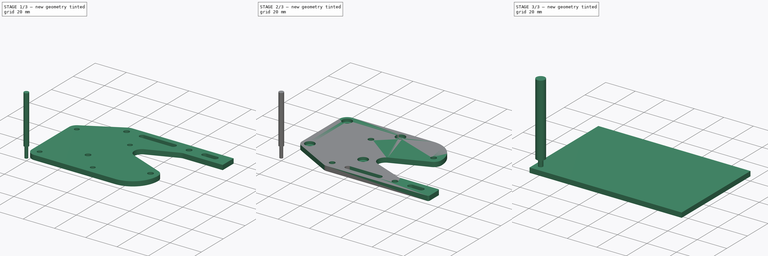
[diagram: build sequence overview — one tinted view per stage of 3, left to right]
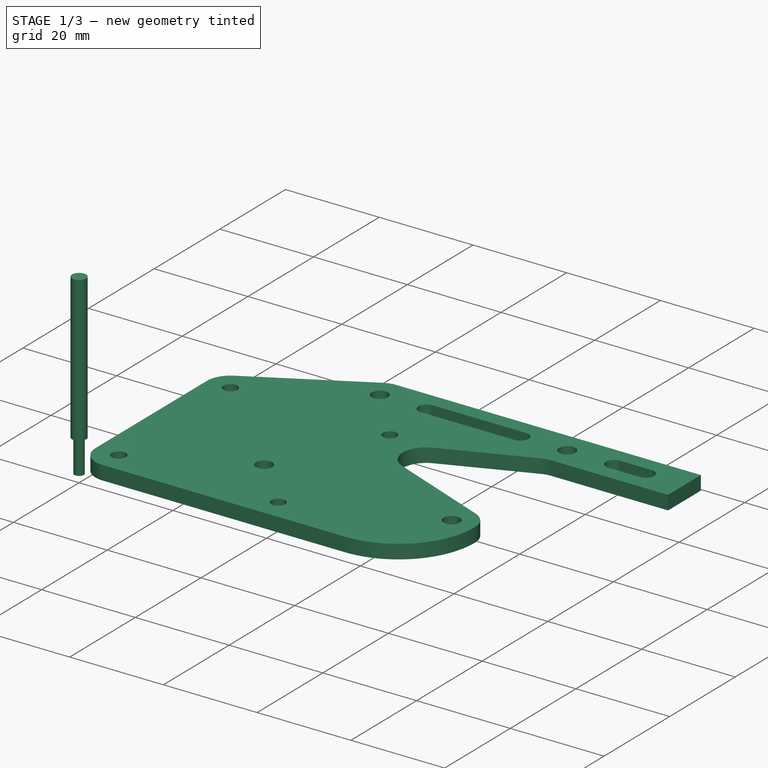
[diagram: stage 1 of 3 — iso view after this stage's code; geometry added in this stage tinted green]
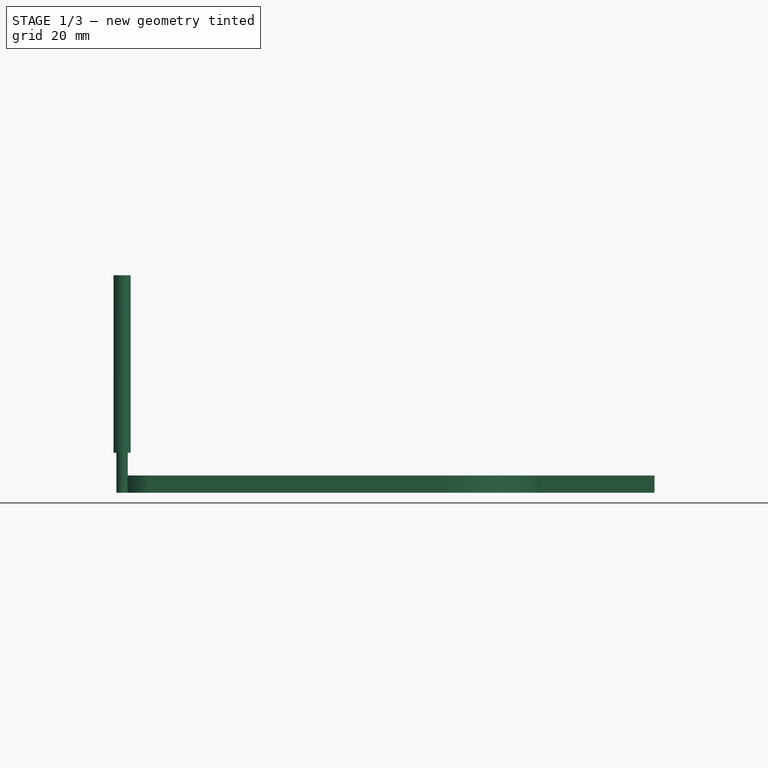
[diagram: stage 1 of 3 — front view after this stage's code; geometry added in this stage tinted green]
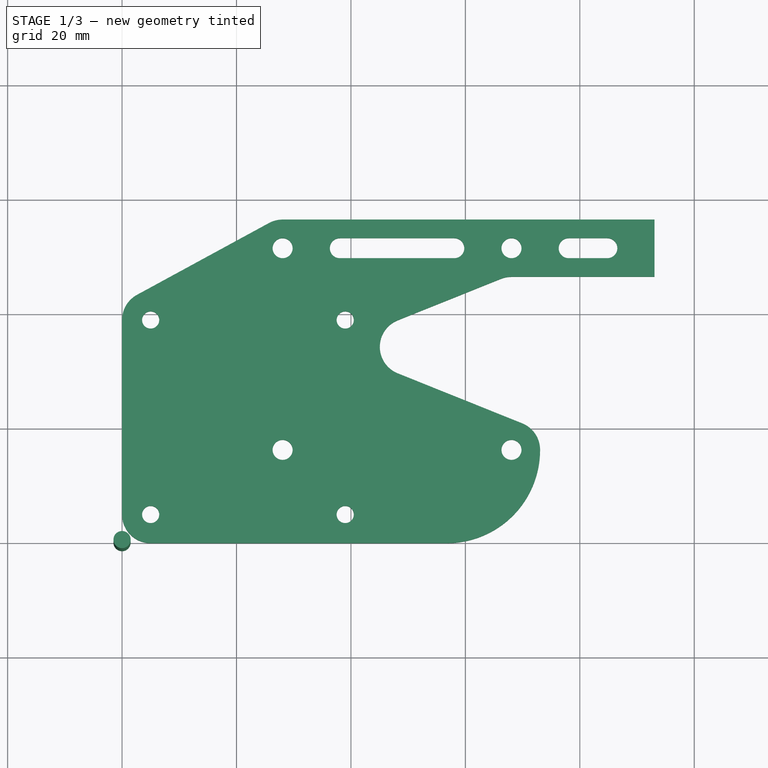
[diagram: stage 1 of 3 — top view after this stage's code; geometry added in this stage tinted green]
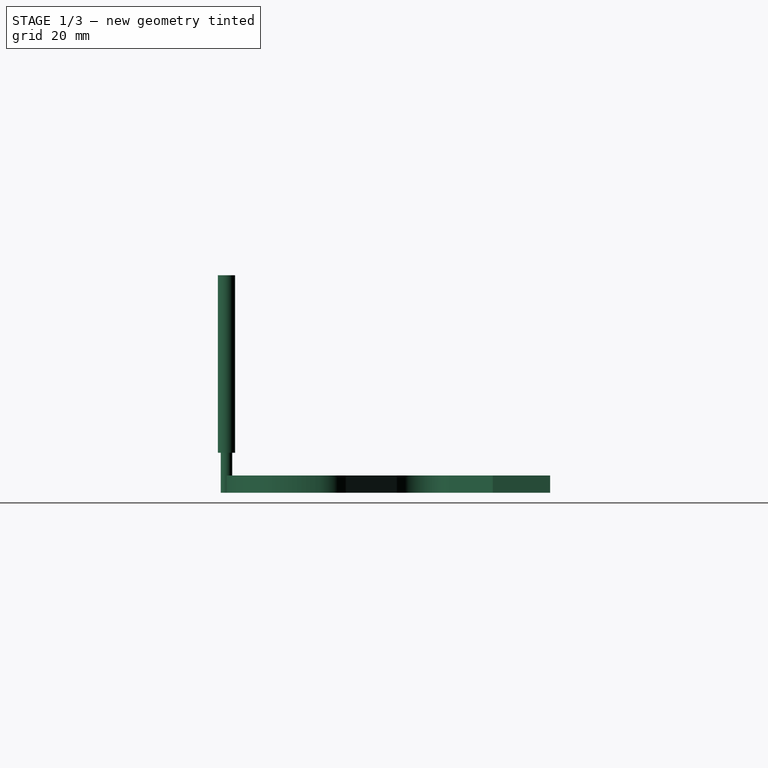
[diagram: stage 1 of 3 — right view after this stage's code; geometry added in this stage tinted green]
FCSTD DOCUMENT  (FreeCAD 0.19R24365 (Git))
Label: E1_Plate_machined
License: All rights reserved
LicenseURL: http://en.wikipedia.org/wiki/All_rights_reserved
objects: Path::FeaturePython×15, Part::FeaturePython×4, Sketcher::SketchObject×2, App::DocumentObjectGroup×2, PartDesign::Pad×1, PartDesign::Fillet×1, PartDesign::Pocket×1, PartDesign::Body×1, App::FeaturePython×1, Path::FeatureCompoundPython×1
note: 19 computed .brp shape members not serialized (recipe doc carries the construction recipe); baked Part::Feature solids carry a one-line shape summary decoded from their .brp

FEATURE [Sketcher::SketchObject] Sketch006
  FullyConstrained = true
  MapMode = 5
  Support = -> [XY_Plane001]
  sketch-geometry (61):
    g0: LineSegment StartX=5 StartY=39 StartZ=0 EndX=39 EndY=39 EndZ=0
    g1: LineSegment StartX=39 StartY=39 StartZ=0 EndX=39 EndY=5 EndZ=0
    g2: LineSegment StartX=39 StartY=5 StartZ=0 EndX=5 EndY=5 EndZ=0
    g3: LineSegment StartX=5 StartY=5 StartZ=0 EndX=5 EndY=39 EndZ=0
    g4: LineSegment StartX=28.06 StartY=51.55 StartZ=0 EndX=68.06 EndY=51.55 EndZ=0
    g5: LineSegment StartX=68.06 StartY=51.55 StartZ=0 EndX=68.06 EndY=16.3 EndZ=0
    g6: LineSegment StartX=68.06 StartY=16.3 StartZ=0 EndX=28.06 EndY=16.3 EndZ=0
    g7: LineSegment StartX=28.06 StartY=16.3 StartZ=0 EndX=28.06 EndY=51.55 EndZ=0
    g8: Circle CenterX=5 CenterY=5 CenterZ=0 NormalX=0 NormalY=0 NormalZ=1 AngleXU=0 Radius=1.5
    g9: Circle CenterX=39 CenterY=5 CenterZ=0 NormalX=0 NormalY=0 NormalZ=1 AngleXU=0 Radius=1.5
    g10: Circle CenterX=39 CenterY=39 CenterZ=0 NormalX=0 NormalY=0 NormalZ=1 AngleXU=0 Radius=1.5
    g11: Circle CenterX=5 CenterY=39 CenterZ=0 NormalX=0 NormalY=0 NormalZ=1 AngleXU=0 Radius=1.5
    g12: Circle CenterX=28.06 CenterY=51.55 CenterZ=0 NormalX=0 NormalY=0 NormalZ=1 AngleXU=0 Radius=1.75
    g13: Circle CenterX=68.06 CenterY=51.55 CenterZ=0 NormalX=0 NormalY=0 NormalZ=1 AngleXU=0 Radius=1.75
    g14: Circle CenterX=68.06 CenterY=16.3 CenterZ=0 NormalX=0 NormalY=0 NormalZ=1 AngleXU=0 Radius=1.75
    g15: Circle CenterX=28.06 CenterY=16.3 CenterZ=0 NormalX=0 NormalY=0 NormalZ=1 AngleXU=0 Radius=1.75
    g16: LineSegment StartX=5 StartY=0 StartZ=0 EndX=56.76 EndY=0 EndZ=0
    g17: LineSegment StartX=48.1831 StartY=38.953 StartZ=0 EndX=66.1961 EndY=46.1896 EndZ=0
    g18: LineSegment StartX=68.06 StartY=46.55 StartZ=0 EndX=93.06 EndY=46.55 EndZ=0
    g19: LineSegment StartX=93.06 StartY=56.55 StartZ=0 EndX=28.06 EndY=56.55 EndZ=0
    g20: LineSegment StartX=0 StartY=39 StartZ=0 EndX=0 EndY=5 EndZ=0
    g21: LineSegment StartX=5 StartY=5 StartZ=0 EndX=5 EndY=0 EndZ=0
    g22: LineSegment StartX=5 StartY=5 StartZ=0 EndX=0 EndY=5 EndZ=0
    g23: ArcOfCircle CenterX=68.06 CenterY=16.3 CenterZ=0 NormalX=0 NormalY=0 NormalZ=1 AngleXU=0 Radius=5 StartAngle=0 EndAngle=1.18879
    g24: LineSegment StartX=68.06 StartY=16.3 StartZ=0 EndX=73.06 EndY=16.3 EndZ=0
    g25: ArcOfCircle CenterX=68.06 CenterY=41.55 CenterZ=0 NormalX=0 NormalY=0 NormalZ=1 AngleXU=0 Radius=5 StartAngle=1.5708 EndAngle=1.9528
    g26: LineSegment StartX=68.06 StartY=51.55 StartZ=0 EndX=68.06 EndY=46.55 EndZ=0
    g27: LineSegment StartX=5 StartY=39 StartZ=0 EndX=0 EndY=39 EndZ=0
    g28: LineSegment StartX=28.06 StartY=51.55 StartZ=0 EndX=28.06 EndY=56.55 EndZ=0
    g29: ArcOfCircle CenterX=28.06 CenterY=51.55 CenterZ=0 NormalX=0 NormalY=0 NormalZ=1 AngleXU=0 Radius=5 StartAngle=1.5708 EndAngle=2.0692
    g30: ArcOfCircle CenterX=5 CenterY=39 CenterZ=0 NormalX=0 NormalY=0 NormalZ=1 AngleXU=0 Radius=5 StartAngle=2.0692 EndAngle=3.14159
    g31: LineSegment StartX=2.60988 StartY=43.3917 StartZ=0 EndX=25.6699 EndY=55.9417 EndZ=0
    g32: LineSegment StartX=93.06 StartY=56.55 StartZ=0 EndX=93.06 EndY=51.55 EndZ=0
    g33: LineSegment StartX=93.06 StartY=51.55 StartZ=0 EndX=93.06 EndY=46.55 EndZ=0
    g34: ArcOfCircle CenterX=56.76 CenterY=16.3 CenterZ=0 NormalX=0 NormalY=0 NormalZ=1 AngleXU=0 Radius=16.3 StartAngle=4.71239 EndAngle=6.28319
    g35: ArcOfCircle CenterX=5 CenterY=5 CenterZ=0 NormalX=0 NormalY=0 NormalZ=1 AngleXU=0 Radius=5 StartAngle=3.14159 EndAngle=4.71239
    g36: ArcOfCircle CenterX=38.06 CenterY=51.55 CenterZ=0 NormalX=0 NormalY=0 NormalZ=1 AngleXU=0 Radius=1.75 StartAngle=1.5708 EndAngle=4.71239
    g37: ArcOfCircle CenterX=58.06 CenterY=51.55 CenterZ=0 NormalX=0 NormalY=0 NormalZ=1 AngleXU=0 Radius=1.75 StartAngle=4.71239 EndAngle=7.85398
    g38: LineSegment StartX=38.06 StartY=49.8 StartZ=0 EndX=58.06 EndY=49.8 EndZ=0
    g39: LineSegment StartX=38.06 StartY=53.3 StartZ=0 EndX=58.06 EndY=53.3 EndZ=0
    g40: LineSegment StartX=48.1831 StartY=29.6738 StartZ=0 EndX=69.9239 EndY=20.9396 EndZ=0
    g41: ArcOfCircle CenterX=50.047 CenterY=34.3134 CenterZ=0 NormalX=0 NormalY=0 NormalZ=1 AngleXU=0 Radius=5 StartAngle=1.9528 EndAngle=4.33038
    g42: LineSegment StartX=50.047 StartY=34.3134 StartZ=0 EndX=45.047 EndY=34.3134 EndZ=0
    g43: LineSegment StartX=48.1831 StartY=38.953 StartZ=0 EndX=48.1831 EndY=34.3134 EndZ=0
    g44: LineSegment StartX=48.1831 StartY=29.6738 StartZ=0 EndX=48.1831 EndY=34.3134 EndZ=0
    g45: ArcOfCircle CenterX=78.06 CenterY=51.55 CenterZ=0 NormalX=0 NormalY=0 NormalZ=1 AngleXU=0 Radius=1.75 StartAngle=1.5708 EndAngle=4.71239
    g46: ArcOfCircle CenterX=84.81 CenterY=51.55 CenterZ=0 NormalX=0 NormalY=0 NormalZ=1 AngleXU=0 Radius=1.75 StartAngle=4.71239 EndAngle=7.85398
    g47: LineSegment StartX=78.06 StartY=49.8 StartZ=0 EndX=84.81 EndY=49.8 EndZ=0
    g48: LineSegment StartX=78.06 StartY=53.3 StartZ=0 EndX=84.81 EndY=53.3 EndZ=0
    g49: LineSegment StartX=78.06 StartY=51.55 StartZ=0 EndX=69.81 EndY=51.55 EndZ=0
    g50: LineSegment StartX=84.81 StartY=51.55 StartZ=0 EndX=93.06 EndY=51.55 EndZ=0
    g51: ArcOfCircle CenterX=15.6807 CenterY=33.5299 CenterZ=0 NormalX=0 NormalY=0 NormalZ=1 AngleXU=0 Radius=5 StartAngle=1.5708 EndAngle=3.14159
    g52: ArcOfCircle CenterX=28.3193 CenterY=33.5299 CenterZ=0 NormalX=0 NormalY=0 NormalZ=1 AngleXU=0 Radius=5 StartAngle=5.49779 EndAngle=7.85398
    g53: ArcOfCircle CenterX=15.6807 CenterY=20.8913 CenterZ=0 NormalX=0 NormalY=0 NormalZ=1 AngleXU=0 Radius=5 StartAngle=3.14159 EndAngle=5.49779
    g54: LineSegment StartX=15.6807 StartY=38.5299 StartZ=0 EndX=28.3193 EndY=38.5299 EndZ=0
    g55: LineSegment StartX=31.8548 StartY=29.9943 StartZ=0 EndX=19.2162 EndY=17.3557 EndZ=0
    g56: LineSegment StartX=10.6807 StartY=20.8913 StartZ=0 EndX=10.6807 EndY=33.5299 EndZ=0
    g57: Circle CenterX=28.06 CenterY=16.3 CenterZ=0 NormalX=0 NormalY=0 NormalZ=1 AngleXU=0 Radius=7
    g58: Circle CenterX=5 CenterY=39 CenterZ=0 NormalX=0 NormalY=0 NormalZ=1 AngleXU=0 Radius=7
    g59: Circle CenterX=5 CenterY=5 CenterZ=0 NormalX=0 NormalY=0 NormalZ=1 AngleXU=0 Radius=7
    g60: Circle CenterX=39 CenterY=39 CenterZ=0 NormalX=0 NormalY=0 NormalZ=1 AngleXU=0 Radius=7
  constraints (159):
    c: Coincident(g0,g1)
    c: Coincident(g1,g2)
    c: Coincident(g2,g3)
    c: Coincident(g3,g0)
    c: Horizontal(g0)
    c: Horizontal(g2)
    c: Vertical(g1)
    c: Vertical(g3)
    c: Coincident(g4,g5)
    c: Coincident(g5,g6)
    c: Coincident(g6,g7)
    c: Coincident(g7,g4)
    c: Horizontal(g4)
    c: Horizontal(g6)
    c: Vertical(g5)
    c: Vertical(g7)
    c: Coincident(g8,g2)
    c: Coincident(g9,g1)
    c: Coincident(g10,g0)
    c: Coincident(g11,g0)
    c: Diameter(g11) = 3
    c: Equal(g11,g9)
    c: Equal(g11,g8)
    c: Coincident(g12,g4)
    c: Coincident(g13,g4)
    c: Coincident(g14,g5)
    c: Coincident(g15,g6)
    c: Diameter(g15) = 3.5
    c: Equal(g15,g14)
    c: Equal(g15,g13)
    c: Equal(g15,g12)
    c: DistanceX(g4,g4) = 40
    c: DistanceY(g5,g5) = 35.25
    c: DistanceX(g0,g0) = 34
    c: DistanceY(g1,g1) = 34
    c: DistanceX(g8,g15) = 23.06
    c: DistanceY(g8,g15) = 11.3
    c: Horizontal(g16)
    c: Horizontal(g18)
    c: Horizontal(g19)
    c: Vertical(g20)
    c: Coincident(g21,g8)
    c: Vertical(g21)
    c: Coincident(g22,g8)
    c: PointOnObject(g22,g20)
    c: Horizontal(g22)
    c: Equal(g21,g22)
    c: DistanceX(g22,g22) = 5
    c: Coincident(g24,g23) = -1.5708
    c: Coincident(g24,g14)
    c: Equal(g24,g21)
    c: Tangent(g18,g25) = 1.5708
    c: Tangent(g17,g25) = 1.5708
    c: Equal(g25,g23)
    c: Coincident(g26,g13)
    c: PointOnObject(g26,g25)
    c: Perpendicular(g25,g26)
    c: Equal(g26,g24)
    c: Horizontal(g20,g11)
    c: Coincident(g27,g11)
    c: Coincident(g27,g20)
    c: Coincident(g28,g12)
    c: Vertical(g28)
    c: Coincident(g19,g28)
    c: Equal(g28,g27)
    c: Coincident(g29,g12)
    c: Coincident(g29,g19)
    c: Coincident(g30,g11)
    c: Coincident(g30,g20)
    c: Tangent(g31,g29) = 1.5708
    c: Tangent(g31,g30) = 1.5708
    c: Coincident(g32,g19)
    c: Coincident(g33,g32)
    c: Coincident(g33,g18)
    c: Vertical(g33)
    c: Vertical(g32)
    c: Equal(g32,g33)
    c: Horizontal(g32,g13)
    c: Coincident(g23,g14)
    c: DistanceX(g18,g18) = 25
    c: Tangent(g16,g34) = -1.5708
    c: Tangent(g23,g34) = -1.5708
    c: Horizontal(g24)
    c: Tangent(g20,g35) = -1.5708
    c: Tangent(g16,g35) = -1.5708
    c: Coincident(g16,g21)
    c: Vertical(g20,g-1)
    c: Horizontal(g16,g-1)
    c: Tangent(g36,g39) = 1.5708
    c: Tangent(g36,g38) = -1.5708
    c: Tangent(g38,g37) = -1.5708
    c: Tangent(g39,g37) = 1.5708
    c: Horizontal(g38)
    c: Equal(g36,g37)
    c: PointOnObject(g36,g4)
    c: Equal(g37,g13)
    c: DistanceX(g12,g36) = 10
    c: DistanceX(g37,g13) = 10
    c: Tangent(g40,g23) = 1.5708
    c: Equal(g41,g23)
    c: Tangent(g41,g40) = -1.5708
    c: Tangent(g41,g17) = 1.5708
    c: Coincident(g42,g41)
    c: PointOnObject(g42,g41)
    c: Horizontal(g42)
    c: Coincident(g43,g17)
    c: PointOnObject(g43,g42)
    c: Vertical(g43)
    c: Coincident(g44,g40)
    c: Coincident(g44,g43)
    c: Vertical(g44)
    c: Tangent(g45,g48) = 1.5708
    c: Tangent(g45,g47) = -1.5708
    c: Tangent(g47,g46) = -1.5708
    c: Tangent(g48,g46) = 1.5708
    c: Horizontal(g47)
    c: Equal(g45,g46)
    c: Equal(g37,g45)
    c: Horizontal(g45,g37)
    c: Coincident(g49,g45)
    c: PointOnObject(g49,g13)
    c: Horizontal(g49)
    c: Coincident(g50,g46)
    c: Coincident(g50,g32)
    c: Equal(g49,g50)
    c: DistanceX(g50,g50) = 8.25
    c: Equal(g51,g53)
    c: Equal(g53,g52)
    c: Equal(g52,g23)
    c: Coincident(g54,g52)
    c: Coincident(g55,g52)
    c: Coincident(g55,g53)
    c: Coincident(g56,g53)
    c: Coincident(g56,g51)
    c: Vertical(g56)
    c: Horizontal(g54)
    c: Coincident(g51,g54)
    c: Tangent(g54,g52)
    c: Tangent(g52,g55)
    c: Tangent(g55,g53)
    c: Tangent(g53,g56)
    c: Tangent(g56,g51)
    c: Tangent(g51,g54)
    c: Coincident(g57,g15)
    c: Tangent(g57,g55)
    c: Coincident(g58,g11)
    c: Tangent(g58,g51)
    c: Coincident(g59,g8)
    c: Equal(g58,g59)
    c: Coincident(g60,g10)
    c: Equal(g60,g57)
    c: Tangent(g52,g60)
    c: Tangent(g60,g41)
    c: Equal(g59,g57)
    c: Radius(g60) = 7
    c: Angle(g55) = -2.35619
    c: Equal(g10,g11)
    c: DistanceX(g37,g13) = 10
    c: DistanceX(g13,g45) = 10
FEATURE [PartDesign::Pad] Pad002
  Direction = (1,1,1)
  Length = 3
  Length2 = 100
  Profile = -> Sketch006
  Refine = true
  Type = 0
FEATURE [Path::FeaturePython] _mm_Endmill  label="3mm_Endmill001"  # Path/CAM operation (typed FeaturePython)
  HorizFeed = 4
  HorizRapid = 50
  SpindleDir = 0
  SpindleSpeed = 14000
  Tool = -> ToolBit001
  ToolNumber = 3
  VertFeed = 0.5
  VertRapid = 10
  expr: VertRapid = SetupSheet.VertRapid
  expr: HorizRapid = SetupSheet.HorizRapid
FEATURE [Path::FeaturePython] Pocket_Shape  # Path/CAM operation (typed FeaturePython)
  Active = true
  AreaParams:
    Tolerance = 1e-07
    FitArcs = True
    Simplify = False
    CleanDistance = 0.0
    Accuracy = 0.01
    Unit = 1.0
    MinArcPoints = 4
    MaxArcPoints = 100
    ClipperScale = 10000000.0
    Fill = 0
    Coplanar = 0
    Reorient = True
    Outline = False
    Explode = False
    OpenMode = 0
    Deflection = 0.01
    SubjectFill = 0
    ClipFill = 0
    Offset = 0.0
    ExtraPass = 0
    Stepover = 0.0
    LastStepover = 0.0
    JoinType = 0
    EndType = 0
    MiterLimit = 2.0
    RoundPrecision = 0.0
    PocketMode = 4
    ToolRadius = 1.5
    PocketExtraOffset = 0.0
    PocketStepover = 1.7999999999999998
    PocketLastStepover = 0.0
    FromCenter = True
    Angle = 45.0
    AngleShift = 0.0
    Shift = 0.0
    Thicken = False
    SectionCount = -1
    Stepdown = 1.0
    SectionOffset = 0.0
    SectionTolerance = 1e-06
    SectionMode = 2
    Project = False
  AttemptInverseAngle = true
  Base = -> [Clone]
  ClearanceHeight = 8.25
  CoolantMode = None
  CutMode = 1
  CycleTime = 00:09:29
  EnableRotation = 0
  ExtensionCorners = true
  ExtensionLengthDefault = 1.5
  ExtraOffset = 0
  FinalDepth = 1.2
  FinishDepth = 0.1
  InverseAngle = false
  KeepToolDown = false
  LimitDepthToFace = true
  MinTravel = false
  OffsetPattern = 3
  OpFinalDepth = 1.2
  OpStartDepth = 3.25
  OpStockZMax = 3.25
  OpStockZMin = -1.2e-14
  OpToolDiameter = 3
  PathParams = {'orientation': 0, 'feedrate': 4.0, 'feedrate_v': 0.5, 'verbose': True, 'resume_height': 6.249999999999988, 'retraction': 8.249999999999988, 'return_end': True, 'preamble': False, 'start': Vector (41.03273532651229, 50.45726454538673, 8.249999999999988)}
  ReverseDirection = false
  SafeHeight = 6.25
  StartAt = 0
  StartDepth = 3.25
  StartPoint = (0,0,0)
  StepDown = 0.2
  StepOver = 60
  ToolController = -> _mm_Endmill
  UseOutline = false
  UseStartPoint = false
  ZigZagAngle = 45
  expr: FinishDepth = 0.1
  expr: ExtensionLengthDefault = OpToolDiameter / 2
  expr: ClearanceHeight = OpStockZMax + SetupSheet.ClearanceHeightOffset
  expr: SafeHeight = OpStockZMax + SetupSheet.SafeHeightOffset
  expr: StepDown = 0.2
  expr: FinalDepth = OpFinalDepth
  expr: StartDepth = OpStartDepth
FEATURE [Path::FeaturePython] RampEntryDressup  label="M3 heads/T3"  # Path/CAM operation (typed FeaturePython)
  Angle = 60
  Base = -> Pocket_Shape
  CustomFeedRate = 0
  DressupStartDepth = 3
  Method = 2
  RampFeedRate = 1
  UseStartDepth = true
FEATURE [Path::FeaturePython] Pocket_Shape001  # Path/CAM operation (typed FeaturePython)
  Active = true
  AreaParams:
    Tolerance = 1e-07
    FitArcs = True
    Simplify = False
    CleanDistance = 0.0
    Accuracy = 0.01
    Unit = 1.0
    MinArcPoints = 4
    MaxArcPoints = 100
    ClipperScale = 10000000.0
    Fill = 0
    Coplanar = 0
    Reorient = True
    Outline = False
    Explode = False
    OpenMode = 0
    Deflection = 0.01
    SubjectFill = 0
    ClipFill = 0
    Offset = 0.0
    ExtraPass = 0
    Stepover = 0.0
    LastStepover = 0.0
    JoinType = 0
    EndType = 0
    MiterLimit = 2.0
    RoundPrecision = 0.0
    PocketMode = 3
    ToolRadius = 1.5
    PocketExtraOffset = 0.0
    PocketStepover = 1.7999999999999998
    PocketLastStepover = 0.0
    FromCenter = True
    Angle = 45.0
    AngleShift = 0.0
    Shift = 0.0
    Thicken = False
    SectionCount = -1
    Stepdown = 1.0
    SectionOffset = 0.0
    SectionTolerance = 1e-06
    SectionMode = 2
    Project = False
  AttemptInverseAngle = true
  Base = -> [Clone]
  ClearanceHeight = 8.25
  CoolantMode = None
  CutMode = 1
  CycleTime = 00:01:17
  EnableRotation = 0
  ExtensionCorners = true
  ExtensionLengthDefault = 1.5
  ExtraOffset = 0
  FinalDepth = -0.4
  FinishDepth = 0
  InverseAngle = false
  KeepToolDown = false
  LimitDepthToFace = true
  MinTravel = false
  OffsetPattern = 2
  OpFinalDepth = -1.2e-14
  OpStartDepth = 3.25
  OpStockZMax = 3.25
  OpStockZMin = -1.2e-14
  OpToolDiameter = 3
  PathParams = {'orientation': 0, 'feedrate': 4.0, 'feedrate_v': 0.5, 'verbose': True, 'resume_height': 6.249999999999988, 'retraction': 8.249999999999988, 'return_end': True, 'preamble': False, 'start': Vector (68.75826673313429, 40.24853906702477, 8.249999999999988)}
  ReverseDirection = false
  SafeHeight = 6.25
  StartAt = 0
  StartDepth = 3.25
  StartPoint = (0,0,0)
  StepDown = 0.2
  StepOver = 60
  ToolController = -> _mm_Endmill
  UseOutline = false
  UseStartPoint = false
  ZigZagAngle = 45
  expr: ExtensionLengthDefault = OpToolDiameter / 2
  expr: ClearanceHeight = OpStockZMax + SetupSheet.ClearanceHeightOffset
  expr: SafeHeight = OpStockZMax + SetupSheet.SafeHeightOffset
  expr: StepDown = 0.2
  expr: FinalDepth = -0.4
  expr: StartDepth = OpStartDepth
FEATURE [Path::FeaturePython] RampEntryDressup001  label="M4 holes/T3"  # Path/CAM operation (typed FeaturePython)
  Angle = 60
  Base = -> Pocket_Shape001
  CustomFeedRate = 0
  DressupStartDepth = 3.25
  Method = 2
  RampFeedRate = 1
  UseStartDepth = true
FEATURE [Path::FeaturePython] Profile  # Path/CAM operation (typed FeaturePython)
  Active = true
  AreaParams:
    Tolerance = 1e-07
    FitArcs = True
    Simplify = False
    CleanDistance = 0.0
    Accuracy = 0.01
    Unit = 1.0
    MinArcPoints = 4
    MaxArcPoints = 100
    ClipperScale = 10000000.0
    Fill = 0
    Coplanar = 0
    Reorient = True
    Outline = False
    Explode = False
    OpenMode = 0
    Deflection = 0.01
    SubjectFill = 0
    ClipFill = 0
    Offset = -1.5
    ExtraPass = 0
    Stepover = 0.0
    LastStepover = 0.0
    JoinType = 0
    EndType = 0
    MiterLimit = 2.0
    RoundPrecision = 0.0
    PocketMode = 0
    ToolRadius = 1.0
    PocketExtraOffset = 0.0
    PocketStepover = 0.0
    PocketLastStepover = 0.0
    FromCenter = False
    Angle = 45.0
    AngleShift = 0.0
    Shift = 0.0
    Thicken = False
    SectionCount = -1
    Stepdown = 1.0
    SectionOffset = 0.0
    SectionTolerance = 1e-06
    SectionMode = 2
    Project = False
  AttemptInverseAngle = true
  Base = -> [Clone]
  ClearanceHeight = 8.25
  CoolantMode = None
  CycleTime = 00:03:29
  Direction = 1
  EnableRotation = 0
  FinalDepth = -0.4
  HandleMultipleFeatures = 0
  InverseAngle = false
  JoinType = 0
  LimitDepthToFace = true
  MiterLimit = 0.1
  OffsetExtra = 0
  OpFinalDepth = 3
  OpStartDepth = 3.25
  OpStockZMax = 3.25
  OpStockZMin = -1.2e-14
  OpToolDiameter = 3
  PathParams = {'orientation': 0, 'feedrate': 4.0, 'feedrate_v': 0.5, 'verbose': True, 'resume_height': 6.249999999999988, 'retraction': 8.249999999999988, 'return_end': True, 'preamble': False}
  ReverseDirection = false
  SafeHeight = 6.25
  Side = 1
  StartDepth = 3.25
  StartPoint = (0,0,0)
  StepDown = 0.2
  ToolController = -> _mm_Endmill
  UseComp = true
  UseStartPoint = false
  processCircles = false
  processHoles = false
  processPerimeter = true
  expr: ClearanceHeight = OpStockZMax + SetupSheet.ClearanceHeightOffset
  expr: SafeHeight = OpStockZMax + SetupSheet.SafeHeightOffset
  expr: StepDown = 0.2
  expr: FinalDepth = -0.4
  expr: StartDepth = OpStartDepth
FEATURE [Path::FeaturePython] Profile001  # Path/CAM operation (typed FeaturePython)
  Active = true
  AreaParams:
    Tolerance = 1e-07
    FitArcs = True
    Simplify = False
    CleanDistance = 0.0
    Accuracy = 0.01
    Unit = 1.0
    MinArcPoints = 4
    MaxArcPoints = 100
    ClipperScale = 10000000.0
    Fill = 0
    Coplanar = 0
    Reorient = True
    Outline = False
    Explode = False
    OpenMode = 0
    Deflection = 0.01
    SubjectFill = 0
    ClipFill = 0
    Offset = -1.5
    ExtraPass = 0
    Stepover = 0.0
    LastStepover = 0.0
    JoinType = 0
    EndType = 0
    MiterLimit = 2.0
    RoundPrecision = 0.0
    PocketMode = 0
    ToolRadius = 1.0
    PocketExtraOffset = 0.0
    PocketStepover = 0.0
    PocketLastStepover = 0.0
    FromCenter = False
    Angle = 45.0
    AngleShift = 0.0
    Shift = 0.0
    Thicken = False
    SectionCount = -1
    Stepdown = 1.0
    SectionOffset = 0.0
    SectionTolerance = 1e-06
    SectionMode = 2
    Project = False
  AttemptInverseAngle = true
  Base = -> [Clone]
  ClearanceHeight = 8.25
  CoolantMode = None
  CycleTime = 00:01:24
  Direction = 1
  EnableRotation = 0
  FinalDepth = -0.4
  HandleMultipleFeatures = 0
  InverseAngle = false
  JoinType = 0
  LimitDepthToFace = true
  MiterLimit = 0.1
  OffsetExtra = 0
  OpFinalDepth = 3
  OpStartDepth = 3.25
  OpStockZMax = 3.25
  OpStockZMin = -1.2e-14
  OpToolDiameter = 3
  PathParams = {'orientation': 0, 'feedrate': 4.0, 'feedrate_v': 0.5, 'verbose': True, 'resume_height': 6.249999999999988, 'retraction': 8.249999999999988, 'return_end': True, 'preamble': False}
  ReverseDirection = false
  SafeHeight = 6.25
  Side = 1
  StartDepth = 3.25
  StartPoint = (0,0,0)
  StepDown = 0.2
  ToolController = -> _mm_Endmill
  UseComp = true
  UseStartPoint = false
  processCircles = false
  processHoles = false
  processPerimeter = true
  expr: ClearanceHeight = OpStockZMax + SetupSheet.ClearanceHeightOffset
  expr: SafeHeight = OpStockZMax + SetupSheet.SafeHeightOffset
  expr: StepDown = 0.2
  expr: FinalDepth = -0.4
  expr: StartDepth = OpStartDepth
FEATURE [Path::FeaturePython] RampEntryDressup002  label="slot 1/T3"  # Path/CAM operation (typed FeaturePython)
  Angle = 60
  Base = -> Profile
  CustomFeedRate = 0
  DressupStartDepth = 3.25
  Method = 2
  RampFeedRate = 1
  UseStartDepth = true
FEATURE [Path::FeaturePython] RampEntryDressup003  label="slot 2/T3"  # Path/CAM operation (typed FeaturePython)
  Angle = 60
  Base = -> Profile001
  CustomFeedRate = 0
  DressupStartDepth = 3.25
  Method = 2
  RampFeedRate = 1
  UseStartDepth = true
FEATURE [Part::FeaturePython] ToolBit  label="2mm_Endmill"  # Path/CAM toolbit (typed FeaturePython)
  BitPropertyNames = Chipload | CuttingEdgeHeight | Diameter | Flutes | Length | Material | ShankDiameter
  BitShape = C:/FreeCAD 0.19 beta/Mod\Path\Tools\Shape\endmill.fcstd
  Chipload = 0
  CuttingEdgeHeight = 7
  Diameter = 2
  File = <path>
  Flutes = 2
  Length = 38
  Material = 1
  ShankDiameter = 3
  ShapeName = endmill
FEATURE [Path::FeaturePython] _mm_Endmill001  label="2mm_Endmill001"  # Path/CAM operation (typed FeaturePython)
  HorizFeed = 4
  HorizRapid = 50
  SpindleDir = 0
  SpindleSpeed = 20000
  Tool = -> ToolBit
  ToolNumber = 2
  VertFeed = 0.5
  VertRapid = 10
  expr: HorizRapid = SetupSheet.HorizRapid
  expr: VertRapid = SetupSheet.VertRapid
FEATURE [App::DocumentObjectGroup] Tools
  Group = -> [_mm_Endmill001,_mm_Endmill]
FEATURE [Path::FeaturePython] Profile002  # Path/CAM operation (typed FeaturePython)
  Active = true
  AreaParams:
    Tolerance = 1e-07
    FitArcs = True
    Simplify = False
    CleanDistance = 0.0
    Accuracy = 0.01
    Unit = 1.0
    MinArcPoints = 4
    MaxArcPoints = 100
    ClipperScale = 10000000.0
    Fill = 0
    Coplanar = 0
    Reorient = True
    Outline = False
    Explode = False
    OpenMode = 0
    Deflection = 0.01
    SubjectFill = 0
    ClipFill = 0
    Offset = 1.0
    ExtraPass = 0
    Stepover = 0.0
    LastStepover = 0.0
    JoinType = 0
    EndType = 0
    MiterLimit = 2.0
    RoundPrecision = 0.0
    PocketMode = 0
    ToolRadius = 1.0
    PocketExtraOffset = 0.0
    PocketStepover = 0.0
    PocketLastStepover = 0.0
    FromCenter = False
    Angle = 45.0
    AngleShift = 0.0
    Shift = 0.0
    Thicken = False
    SectionCount = -1
    Stepdown = 1.0
    SectionOffset = 0.0
    SectionTolerance = 1e-06
    SectionMode = 2
    Project = False
  AttemptInverseAngle = true
  Base = -> [Clone]
  ClearanceHeight = 8.25
  CoolantMode = None
  CycleTime = 00:23:59
  Direction = 1
  EnableRotation = 0
  FinalDepth = -0.4
  HandleMultipleFeatures = 0
  InverseAngle = false
  JoinType = 0
  LimitDepthToFace = true
  MiterLimit = 0.1
  OffsetExtra = 0
  OpFinalDepth = 3
  OpStartDepth = 3.25
  OpStockZMax = 3.25
  OpStockZMin = -1.2e-14
  OpToolDiameter = 2
  PathParams = {'orientation': 0, 'feedrate': 4.0, 'feedrate_v': 0.5, 'verbose': True, 'resume_height': 6.249999999999988, 'retraction': 8.249999999999988, 'return_end': True, 'preamble': False}
  ReverseDirection = false
  SafeHeight = 6.25
  Side = 0
  StartDepth = 3.25
  StartPoint = (0,0,0)
  StepDown = 0.2
  ToolController = -> _mm_Endmill001
  UseComp = true
  UseStartPoint = false
  processCircles = false
  processHoles = false
  processPerimeter = true
  expr: ClearanceHeight = OpStockZMax + SetupSheet.ClearanceHeightOffset
  expr: SafeHeight = OpStockZMax + SetupSheet.SafeHeightOffset
  expr: StepDown = 0.2
  expr: FinalDepth = -0.4
  expr: StartDepth = OpStartDepth
FEATURE [Path::FeaturePython] Pocket_Shape002  label="M3 holes/T2"  # Path/CAM operation (typed FeaturePython)
  Active = true
  AreaParams:
    Tolerance = 1e-07
    FitArcs = True
    Simplify = False
    CleanDistance = 0.0
    Accuracy = 0.01
    Unit = 1.0
    MinArcPoints = 4
    MaxArcPoints = 100
    ClipperScale = 10000000.0
    Fill = 0
    Coplanar = 0
    Reorient = True
    Outline = False
    Explode = False
    OpenMode = 0
    Deflection = 0.01
    SubjectFill = 0
    ClipFill = 0
    Offset = 0.0
    ExtraPass = 0
    Stepover = 0.0
    LastStepover = 0.0
    JoinType = 0
    EndType = 0
    MiterLimit = 2.0
    RoundPrecision = 0.0
    PocketMode = 3
    ToolRadius = 1.0
    PocketExtraOffset = 0.0
    PocketStepover = 2.0
    PocketLastStepover = 0.0
    FromCenter = True
    Angle = 45.0
    AngleShift = 0.0
    Shift = 0.0
    Thicken = False
    SectionCount = -1
    Stepdown = 1.0
    SectionOffset = 0.0
    SectionTolerance = 1e-06
    SectionMode = 2
    Project = False
  AttemptInverseAngle = true
  Base = -> [Clone]
  ClearanceHeight = 8.25
  CoolantMode = None
  CutMode = 0
  CycleTime = 00:01:21
  EnableRotation = 0
  ExtensionCorners = true
  ExtensionLengthDefault = 1
  ExtraOffset = 0
  FinalDepth = -0.4
  FinishDepth = 0
  InverseAngle = false
  KeepToolDown = false
  LimitDepthToFace = true
  MinTravel = false
  OffsetPattern = 2
  OpFinalDepth = -1.2e-14
  OpStartDepth = 3.25
  OpStockZMax = 3.25
  OpStockZMin = -1.2e-14
  OpToolDiameter = 2
  PathParams = {'orientation': 1, 'feedrate': 4.0, 'feedrate_v': 0.5, 'verbose': True, 'resume_height': 6.249999999999988, 'retraction': 8.249999999999988, 'return_end': True, 'preamble': False, 'start': Vector (39.44637960264979, 51.542832792587774, 8.249999999999988)}
  ReverseDirection = false
  SafeHeight = 6.25
  StartAt = 0
  StartDepth = 3.25
  StartPoint = (0,0,0)
  StepDown = 0.2
  StepOver = 100
  ToolController = -> _mm_Endmill001
  UseOutline = false
  UseStartPoint = false
  ZigZagAngle = 45
  expr: ExtensionLengthDefault = OpToolDiameter / 2
  expr: ClearanceHeight = OpStockZMax + SetupSheet.ClearanceHeightOffset
  expr: SafeHeight = OpStockZMax + SetupSheet.SafeHeightOffset
  expr: StepDown = 0.2
  expr: FinalDepth = -0.4
  expr: StartDepth = OpStartDepth
FEATURE [Path::FeaturePython] DressupTag  # Path/CAM operation (typed FeaturePython)
  Angle = 45
  Base = -> Profile002
  Height = 1
  Positions = (5) [(37.36,-1,0),(58.5058,14.9052,0),(31.7898,57.5491,0),(-0.0591129,34.5202,0),(95,4.69,0)]
  Radius = 0
  SegmentationFactor = 50
  Width = 6.41
FEATURE [Path::FeaturePython] RampEntryDressup004  label="outline/T2"  # Path/CAM operation (typed FeaturePython)
  Angle = 60
  Base = -> DressupTag
  CustomFeedRate = 0
  DressupStartDepth = 3.25
  Method = 2
  RampFeedRate = 0
  UseStartDepth = false
FEATURE [Path::FeatureCompoundPython] Operations  # Path/CAM operation (typed FeaturePython)
  Group = -> [RampEntryDressup,RampEntryDressup001,RampEntryDressup002,RampEntryDressup003,Pocket_Shape002,RampEntryDressup004]
  UsePlacements = false
FEATURE [Path::FeaturePython] Job  # Path/CAM operation (typed FeaturePython)
  CycleTime = 00:40:59
  Fixtures = G54
  GeometryTolerance = 0.01
  LastPostProcessDate = 2022-02-09 19:36:13.826191
  LastPostProcessOutput = <path>
  Model = -> Model
  Operations = -> Operations
  OrderOutputBy = 0
  PostProcessor = 1
  SetupSheet = -> SetupSheet
  SplitOutput = false
  Stock = -> Stock
  Tools = -> Tools
note: 3 file-system paths scrubbed to <path> (originals preserved in the JSON sidecar)
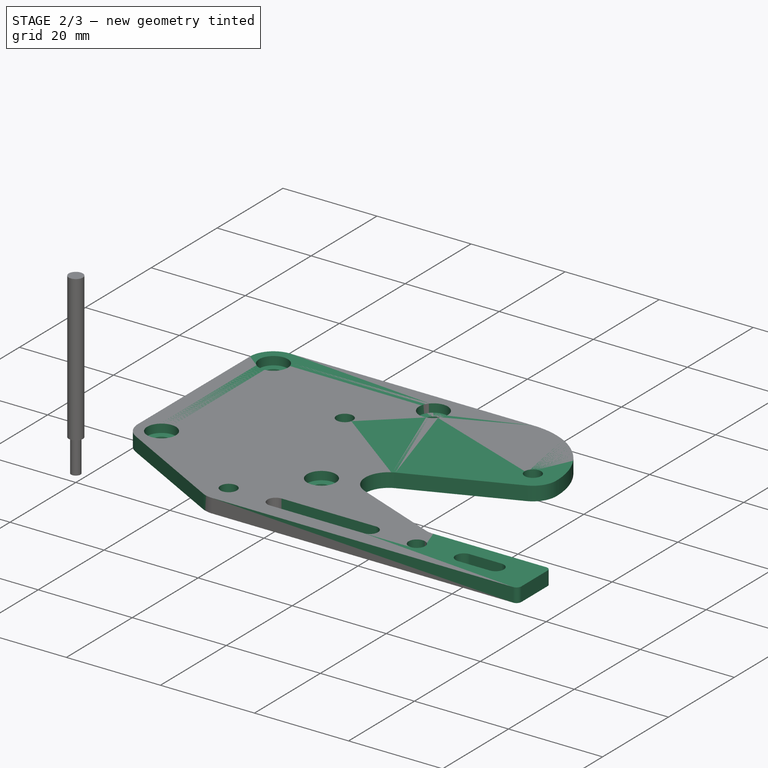
[diagram: stage 2 of 3 — iso view after this stage's code; geometry added in this stage tinted green]
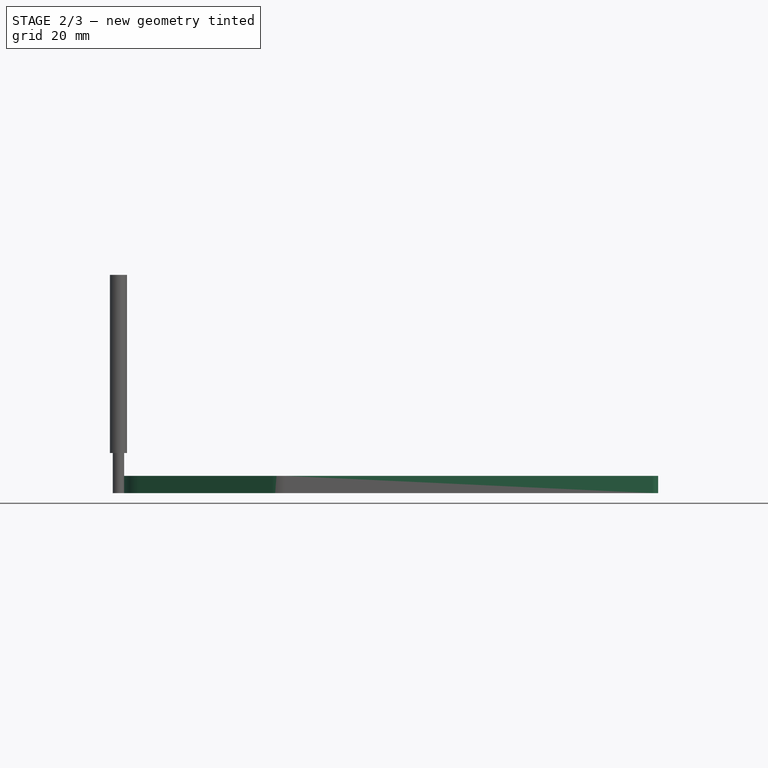
[diagram: stage 2 of 3 — front view after this stage's code; geometry added in this stage tinted green]
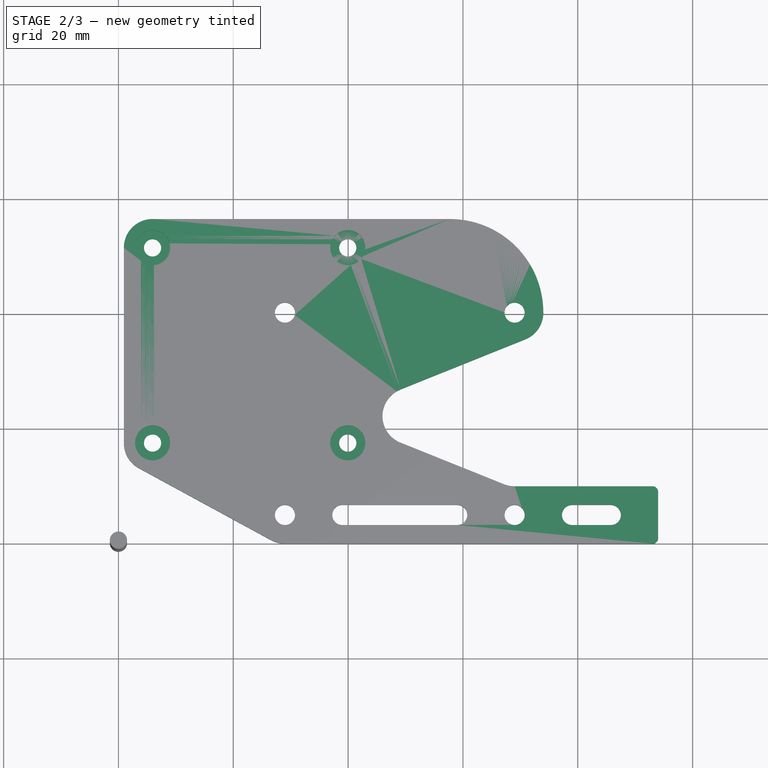
[diagram: stage 2 of 3 — top view after this stage's code; geometry added in this stage tinted green]
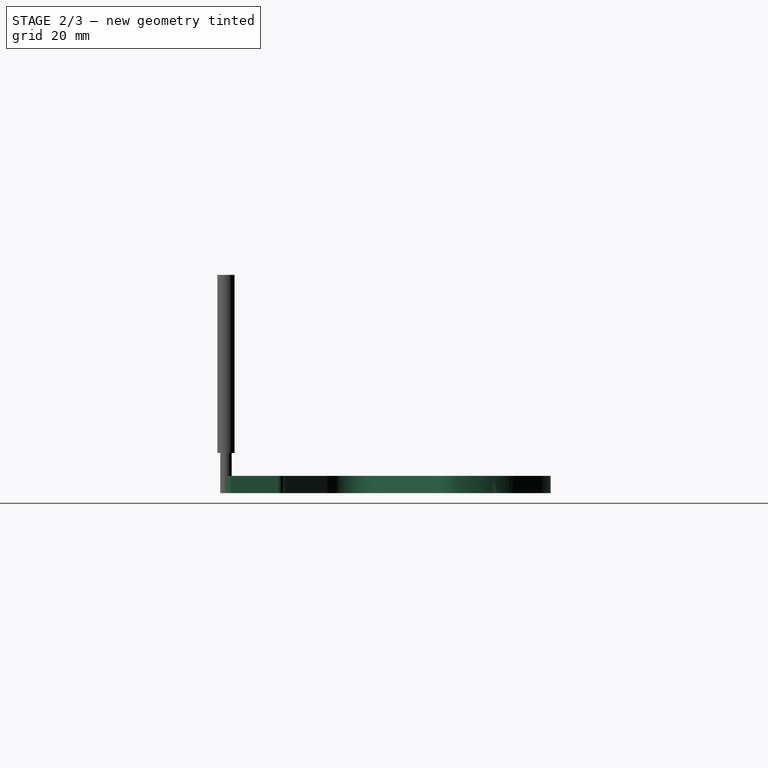
[diagram: stage 2 of 3 — right view after this stage's code; geometry added in this stage tinted green]
FEATURE [PartDesign::Fillet] Fillet
  Base = -> Pad002 [Edge32,Edge38]
  BaseFeature = -> Pad002
  Radius = 1
  Refine = true
  SupportTransform = false
FEATURE [Sketcher::SketchObject] Sketch
  ExternalGeometry = -> [Fillet]
  FullyConstrained = true
  MapMode = 5
  Placement = pos=(0,0,0) rot=(1,0,0;3.14159rad)
  Support = -> [Fillet]
  sketch-geometry (4):
    g0: Circle CenterX=5 CenterY=-5 CenterZ=0 NormalX=0 NormalY=0 NormalZ=1 AngleXU=0 Radius=3.05
    g1: Circle CenterX=39 CenterY=-5 CenterZ=0 NormalX=0 NormalY=0 NormalZ=1 AngleXU=0 Radius=3.05
    g2: Circle CenterX=39 CenterY=-39 CenterZ=0 NormalX=0 NormalY=0 NormalZ=1 AngleXU=0 Radius=3.05
    g3: Circle CenterX=5 CenterY=-39 CenterZ=0 NormalX=0 NormalY=0 NormalZ=1 AngleXU=0 Radius=3.05
  constraints (8):
    c: Coincident(g0,g-3)
    c: Coincident(g1,g-6)
    c: Coincident(g2,g-5)
    c: Coincident(g3,g-4)
    c: Equal(g2,g3)
    c: Equal(g2,g0)
    c: Equal(g2,g1)
    c: Diameter(g2) = 6.1
FEATURE [PartDesign::Pocket] Pocket
  BaseFeature = -> Fillet
  Length = 1.8
  Length2 = 100
  Profile = -> Sketch
  Type = 0
FEATURE [PartDesign::Body] Body001  label="E1_Plate"
  Group = -> [Sketch006,Pad002,Fillet,Sketch,Pocket]
  Origin = -> Origin001
  Placement = pos=(0.94,56.55,3) rot=(1,0,0;3.14159rad)
  Tip = -> Pocket
FEATURE [App::FeaturePython] SetupSheet  # Path/CAM operation (typed FeaturePython)
  ClearanceHeightExpression = OpStockZMax+SetupSheet.ClearanceHeightOffset
  ClearanceHeightOffset = 5
  CoolantMode = 0
  CoolantModes = None | Flood | Mist
  FinalDepthExpression = OpFinalDepth
  HorizRapid = 50
  SafeHeightExpression = OpStockZMax+SetupSheet.SafeHeightOffset
  SafeHeightOffset = 3
  StartDepthExpression = OpStartDepth
  StepDownExpression = OpToolDiameter
  VertRapid = 10
FEATURE [Part::FeaturePython] Clone  label="Model-E1_Plate"  # Draft clone (typed FeaturePython)
  AttacherType = Attacher::AttachEngine3D
  Fuse = false
  Objects = -> [Body001]
  PathResource = Model
  Placement = pos=(0.94,56.55,3) rot=(1,0,0;3.14159rad)
  Scale = (1,1,1)
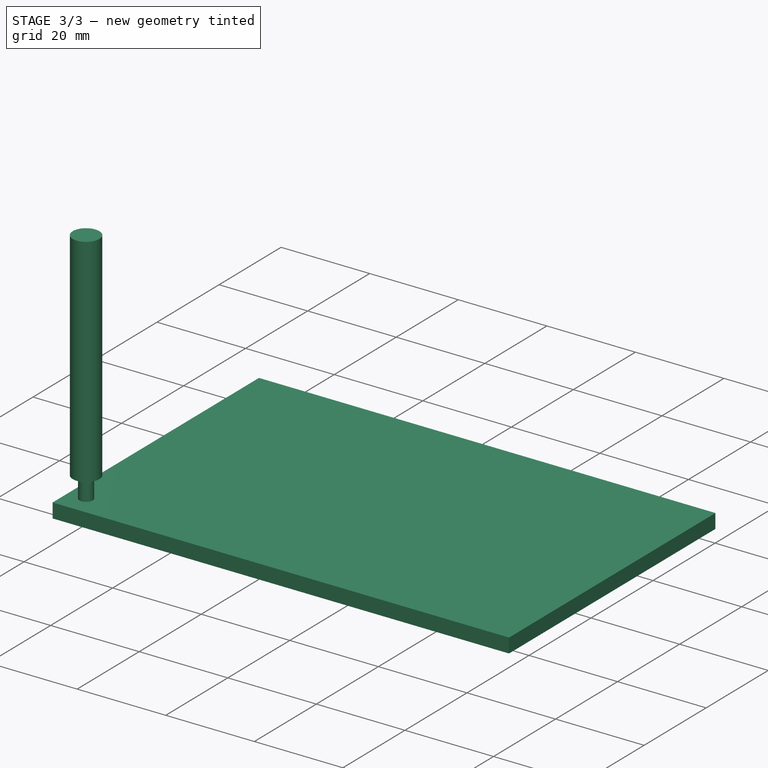
[diagram: stage 3 of 3 — iso view after this stage's code; geometry added in this stage tinted green]
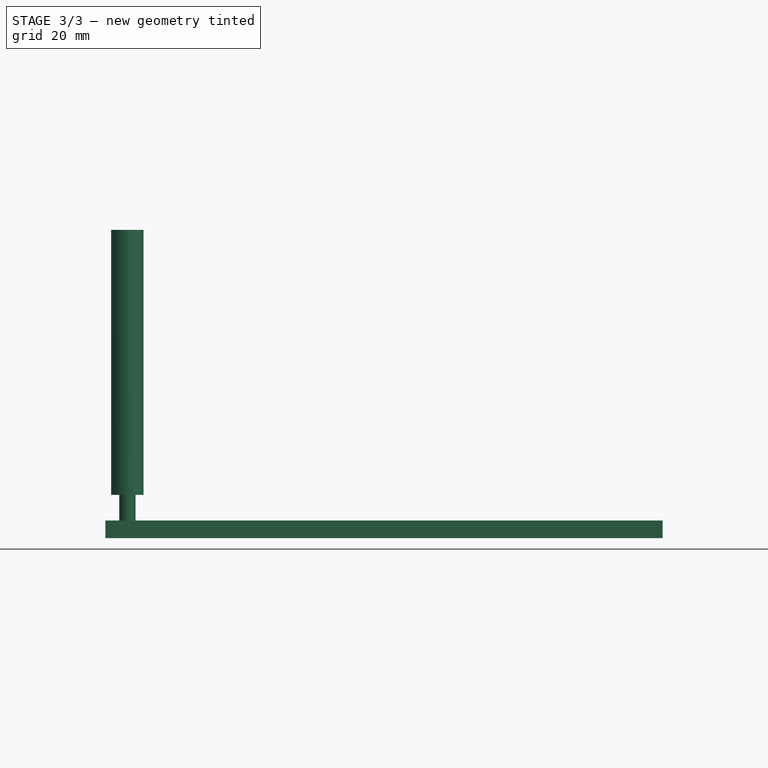
[diagram: stage 3 of 3 — front view after this stage's code; geometry added in this stage tinted green]
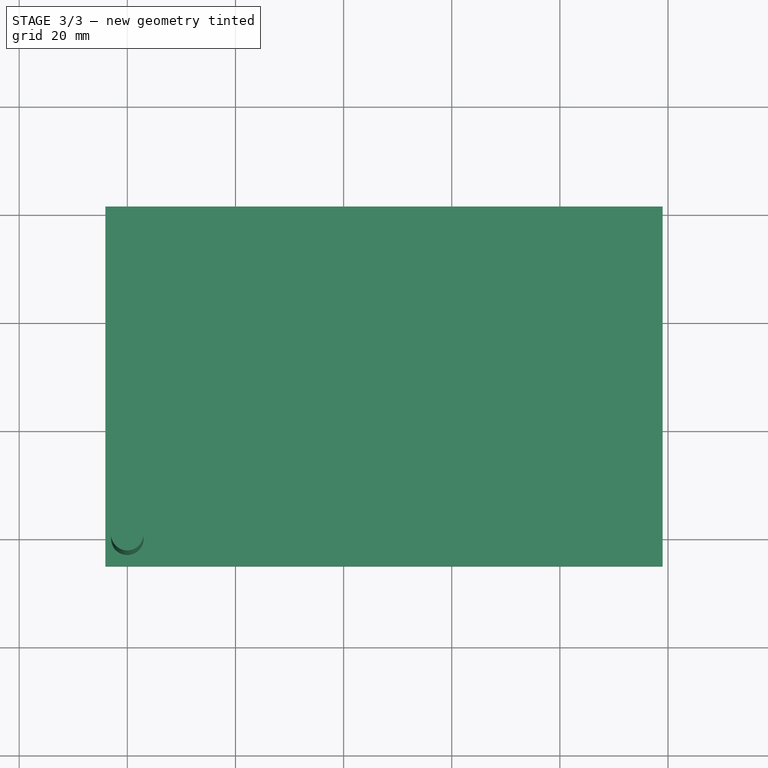
[diagram: stage 3 of 3 — top view after this stage's code; geometry added in this stage tinted green]
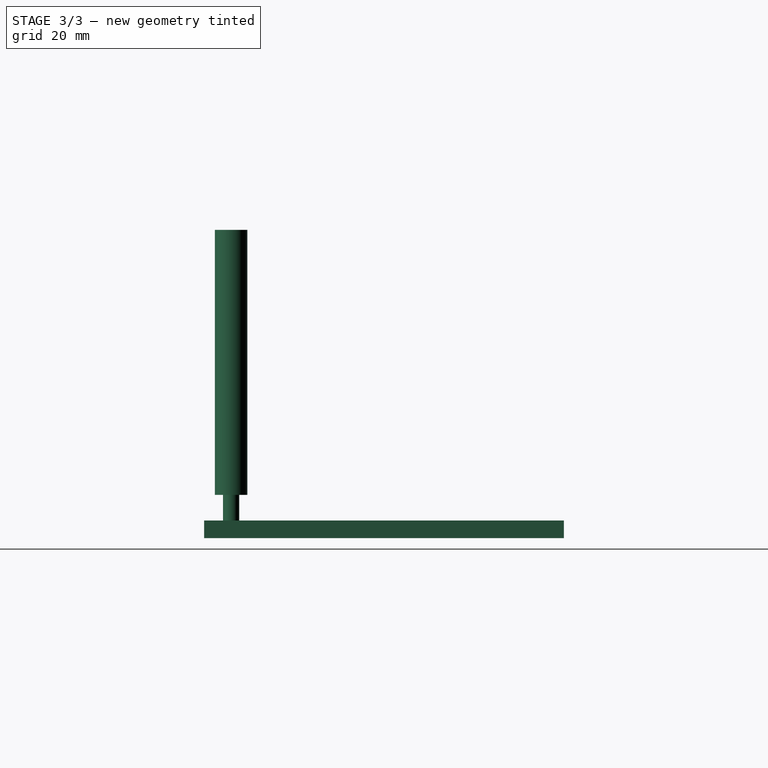
[diagram: stage 3 of 3 — right view after this stage's code; geometry added in this stage tinted green]
FEATURE [App::DocumentObjectGroup] Model
  Group = -> [Clone]
FEATURE [Part::FeaturePython] Stock  # WARN: FeaturePython — macro-defined, semantics opaque (R4)
  Base = -> Model
  ExtXneg = 5
  ExtXpos = 5
  ExtYneg = 5
  ExtYpos = 5
  ExtZneg = 0
  ExtZpos = 0.25
  Placement = pos=(0.94,-7.1e-15,-1.2e-14) rot=(0,0,1;0rad)
  StockType = FromBase
FEATURE [Part::FeaturePython] ToolBit001  label="3mm_Endmill"  # Path/CAM toolbit (typed FeaturePython)
  BitPropertyNames = Chipload | CuttingEdgeHeight | Diameter | Flutes | Length | Material | ShankDiameter
  BitShape = C:/FreeCAD 0.19 beta/Mod\Path\Tools\Shape\endmill.fcstd
  Chipload = 0
  CuttingEdgeHeight = 8
  Diameter = 3
  File = <path>
  Flutes = 2
  Length = 57
  Material = 1
  ShankDiameter = 6
  ShapeName = endmill
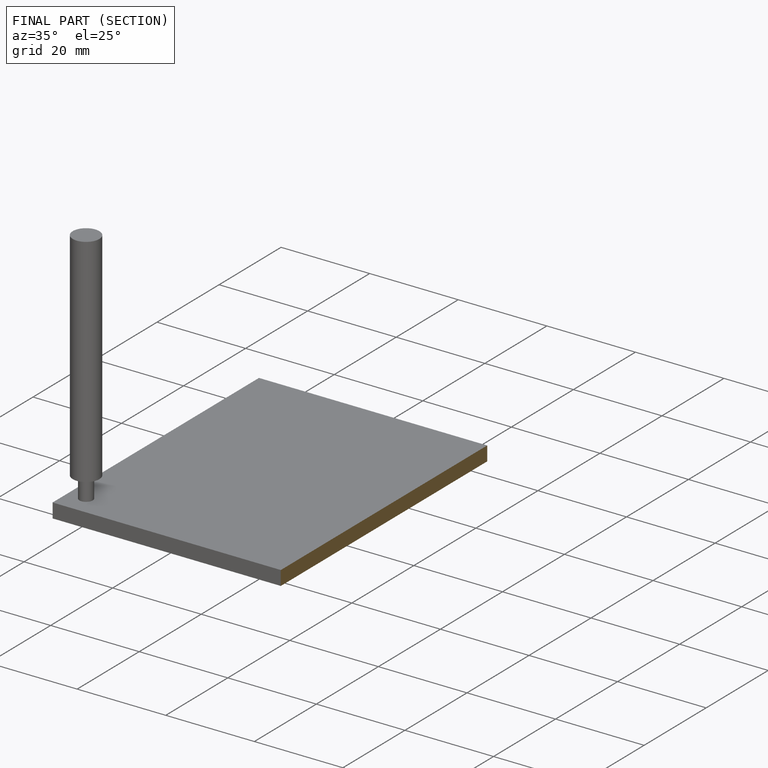
[diagram: finished part — half-section view (interior)]
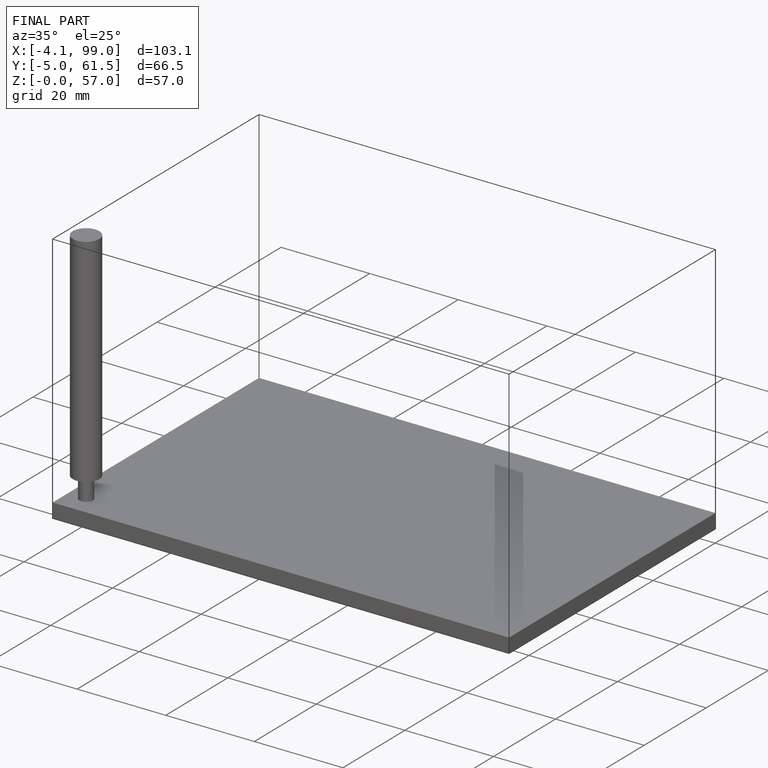
[diagram: finished part — iso view with bounding-box wireframe]
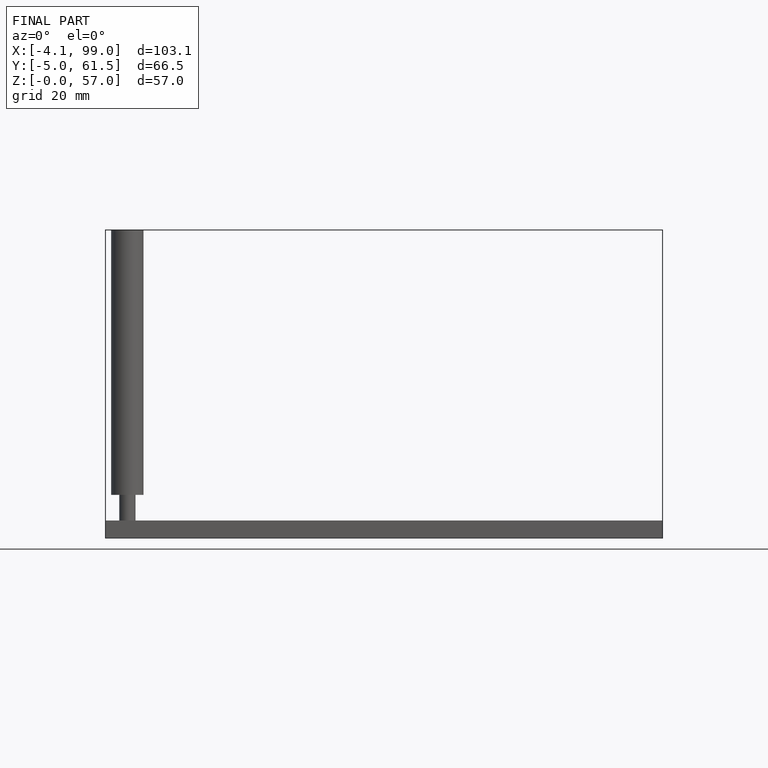
[diagram: finished part — front view with bounding-box wireframe]
